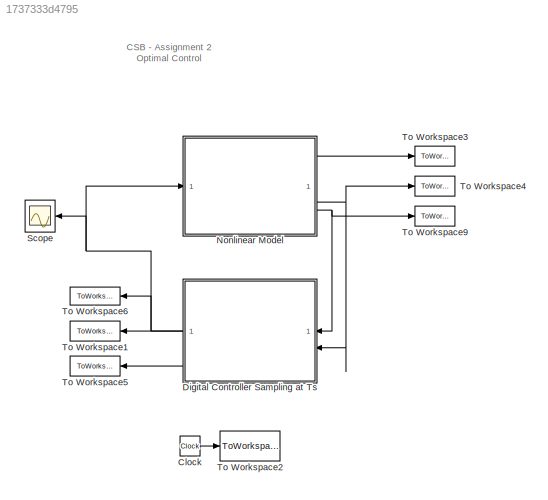
MODEL slx_1737333d4795
KIND model
CONFIG AbsTol = auto
CONFIG EnableMultiTasking = off
CONFIG FixedStep = auto
CONFIG MaxStep = auto
CONFIG MinStep = auto
CONFIG RelTol = 1e-3
CONFIG SampleTimeConstraint = Unconstrained
CONFIG SolverName = ode45
CONFIG StartFcn = sim_inv_pend
CONFIG StartTime = 0.0
CONFIG StopTime = Tf
BLOCK [Clock] Clock
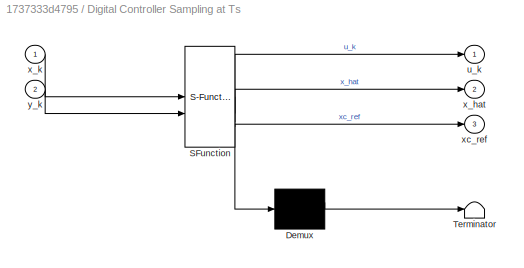
BLOCK [SubSystem] Digital Controller Sampling at Ts
  ErrorFcn = Stateflow.Translate.translate
  PermitHierarchicalResolution = ExplicitOnly
  SFBlockType = MATLAB Function
  SystemSampleTime = Ts
  TreatAsAtomicUnit = on
BLOCK [Demux] Digital Controller Sampling at Ts/ Demux 
  Outputs = 1
BLOCK [S-Function] Digital Controller Sampling at Ts/ SFunction 
  EnableBusSupport = on
  FunctionName = sf_sfun
  Parameters = A,AN,B,C,CL,F,K,Kf,Lambda,N,Umax,Umin,W,Xmax,Xmin,controller,obs,saturate,xo_hat
  PortCounts = [2 4]
  SFcnIsStateOwnerBlock = off
  SFunctionDeploymentMode = off
  Tag = Stateflow S-Function 2
BLOCK [Terminator] Digital Controller Sampling at Ts/ Terminator 
BLOCK [Outport] Digital Controller Sampling at Ts/u_k
BLOCK [Outport] Digital Controller Sampling at Ts/x_hat
  Port = 2
BLOCK [Inport] Digital Controller Sampling at Ts/x_k
BLOCK [Outport] Digital Controller Sampling at Ts/xc_ref
  Port = 3
BLOCK [Inport] Digital Controller Sampling at Ts/y_k
  Port = 2
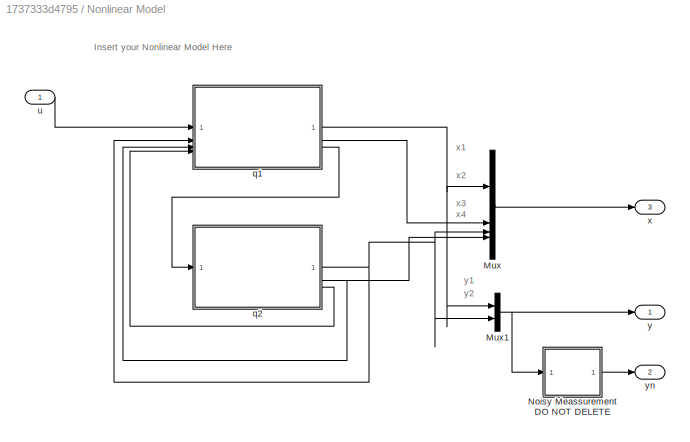
BLOCK [SubSystem] Nonlinear Model
BLOCK [Mux] Nonlinear Model/Mux
  DisplayOption = bar
BLOCK [Mux] Nonlinear Model/Mux1
  DisplayOption = bar
  Inputs = 2
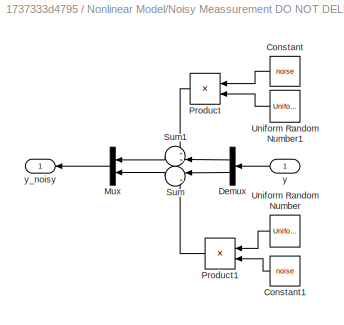
BLOCK [SubSystem] Nonlinear Model/Noisy Meassurement DO NOT DELETE
BLOCK [Constant] Nonlinear Model/Noisy Meassurement DO NOT DELETE/Constant
  NameLocation = top
  Value = noise
BLOCK [Constant] Nonlinear Model/Noisy Meassurement DO NOT DELETE/Constant1
  NameLocation = top
  Value = noise
BLOCK [Demux] Nonlinear Model/Noisy Meassurement DO NOT DELETE/Demux
  NameLocation = top
  Outputs = 2
BLOCK [Mux] Nonlinear Model/Noisy Meassurement DO NOT DELETE/Mux
  DisplayOption = bar
  Inputs = 2
  NameLocation = top
BLOCK [Product] Nonlinear Model/Noisy Meassurement DO NOT DELETE/Product
  NameLocation = top
BLOCK [Product] Nonlinear Model/Noisy Meassurement DO NOT DELETE/Product1
  NameLocation = top
BLOCK [Sum] Nonlinear Model/Noisy Meassurement DO NOT DELETE/Sum
  Inputs = |++
  NameLocation = top
BLOCK [Sum] Nonlinear Model/Noisy Meassurement DO NOT DELETE/Sum1
  Inputs = ++|
  NameLocation = top
BLOCK [UniformRandomNumber] Nonlinear Model/Noisy Meassurement DO NOT DELETE/Uniform Random Number
  Maximum = 0.002
  Minimum = -0.002
  NameLocation = top
  SampleTime = 0.5*Ts
BLOCK [UniformRandomNumber] Nonlinear Model/Noisy Meassurement DO NOT DELETE/Uniform Random Number1
  Maximum = 0.3
  Minimum = -0.3
  NameLocation = top
  SampleTime = 0.5*Ts
BLOCK [Inport] Nonlinear Model/Noisy Meassurement DO NOT DELETE/y
  NameLocation = top
BLOCK [Outport] Nonlinear Model/Noisy Meassurement DO NOT DELETE/y_noisy
  VectorParamsAs1DForOutWhenUnconnected = off
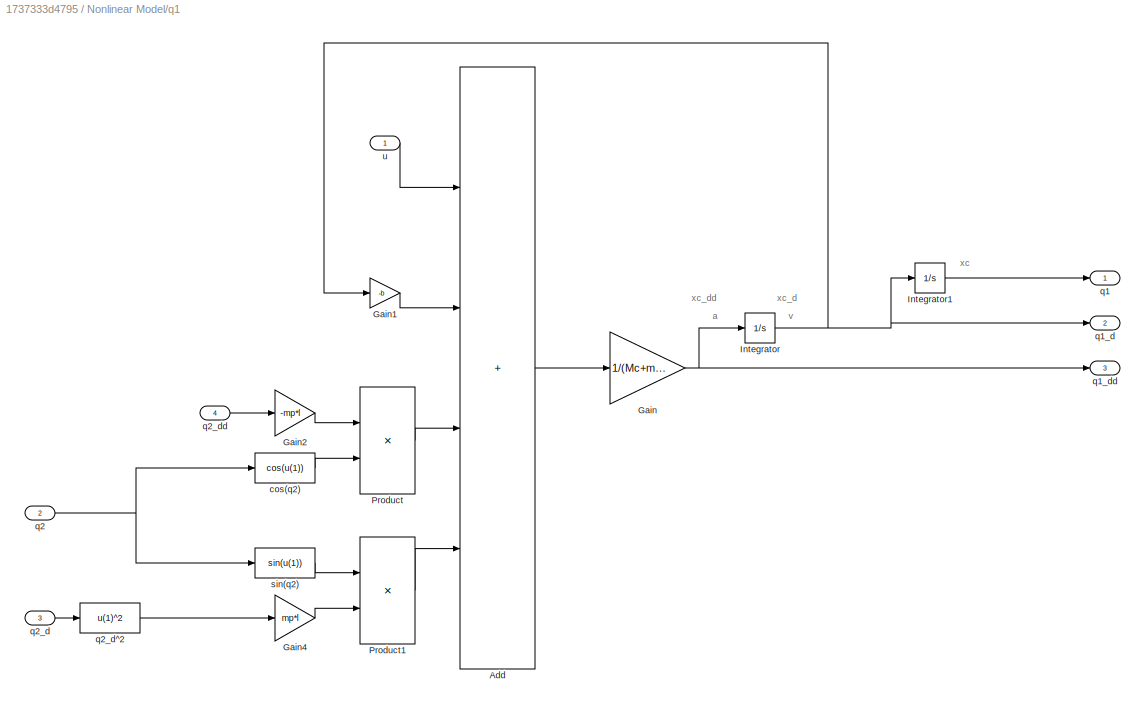
BLOCK [SubSystem] Nonlinear Model/q1
BLOCK [Sum] Nonlinear Model/q1/Add
  IconShape = rectangular
  Inputs = ++++
BLOCK [Gain] Nonlinear Model/q1/Gain
  Gain = 1/(Mc+mp)
BLOCK [Gain] Nonlinear Model/q1/Gain1
  Gain = -b
BLOCK [Gain] Nonlinear Model/q1/Gain2
  Gain = -mp*l
BLOCK [Gain] Nonlinear Model/q1/Gain4
  Gain = mp*l
BLOCK [Integrator] Nonlinear Model/q1/Integrator
  InitialCondition = xsp_o
BLOCK [Integrator] Nonlinear Model/q1/Integrator1
  InitialCondition = x_o
BLOCK [Product] Nonlinear Model/q1/Product
BLOCK [Product] Nonlinear Model/q1/Product1
BLOCK [Fcn] Nonlinear Model/q1/cos(q2)
  Expr = cos(u(1))
BLOCK [Outport] Nonlinear Model/q1/q1
  VectorParamsAs1DForOutWhenUnconnected = off
BLOCK [Outport] Nonlinear Model/q1/q1_d
  Port = 2
  VectorParamsAs1DForOutWhenUnconnected = off
BLOCK [Outport] Nonlinear Model/q1/q1_dd
  Port = 3
  VectorParamsAs1DForOutWhenUnconnected = off
BLOCK [Inport] Nonlinear Model/q1/q2
  Port = 2
BLOCK [Inport] Nonlinear Model/q1/q2_d
  Port = 3
BLOCK [Fcn] Nonlinear Model/q1/q2_d^2
  Expr = u(1)^2
BLOCK [Inport] Nonlinear Model/q1/q2_dd
  Port = 4
BLOCK [Fcn] Nonlinear Model/q1/sin(q2)
  Expr = sin(u(1))
BLOCK [Inport] Nonlinear Model/q1/u
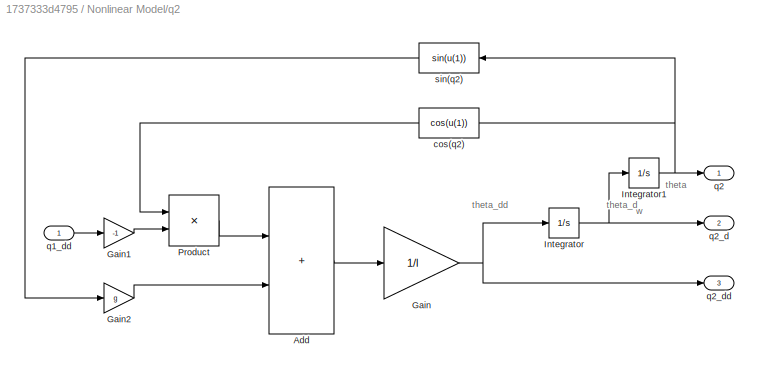
BLOCK [SubSystem] Nonlinear Model/q2
BLOCK [Sum] Nonlinear Model/q2/Add
  IconShape = rectangular
BLOCK [Gain] Nonlinear Model/q2/Gain
  Gain = 1/l
BLOCK [Gain] Nonlinear Model/q2/Gain1
  Gain = -1
BLOCK [Gain] Nonlinear Model/q2/Gain2
  Gain = g
BLOCK [Integrator] Nonlinear Model/q2/Integrator
  InitialCondition = w_o
BLOCK [Integrator] Nonlinear Model/q2/Integrator1
  InitialCondition = th_o
BLOCK [Product] Nonlinear Model/q2/Product
BLOCK [Fcn] Nonlinear Model/q2/cos(q2)
  Expr = cos(u(1))
  NameLocation = top
BLOCK [Inport] Nonlinear Model/q2/q1_dd
BLOCK [Outport] Nonlinear Model/q2/q2
  VectorParamsAs1DForOutWhenUnconnected = off
BLOCK [Outport] Nonlinear Model/q2/q2_d
  Port = 2
  VectorParamsAs1DForOutWhenUnconnected = off
BLOCK [Outport] Nonlinear Model/q2/q2_dd
  Port = 3
  VectorParamsAs1DForOutWhenUnconnected = off
BLOCK [Fcn] Nonlinear Model/q2/sin(q2)
  Expr = sin(u(1))
  NameLocation = top
BLOCK [Inport] Nonlinear Model/u
BLOCK [Outport] Nonlinear Model/x
  Port = 3
  VectorParamsAs1DForOutWhenUnconnected = off
BLOCK [Outport] Nonlinear Model/y
  VectorParamsAs1DForOutWhenUnconnected = off
BLOCK [Outport] Nonlinear Model/yn
  Port = 2
  VectorParamsAs1DForOutWhenUnconnected = off
BLOCK [Scope] Scope
  Floating = off
  NumInputPorts = 1
  ScopeSpecificationString = Simulink.scopes.TimeScopeBlockCfg('CurrentConfiguration', extmgr.ConfigurationSet(extmgr.Configuration('Core','General UI',true),extmgr.Configuration('Core','Source UI',true),extmgr.Configuration('Sources','WiredSimulink',true),extmgr.Configuration('Visuals','Time Domain',true),extmgr.Configuration('Tools','Plot Navigation',true),extmgr.Configuration('Tools','Measurements',true)),'Version','2022b'...<+1ch>
BLOCK [ToWorkspace] To Workspace1
  FixptAsFi = on
  MaxDataPoints = inf
  NameLocation = top
  SampleTime = Ts/100
  VariableName = x_hat
BLOCK [ToWorkspace] To Workspace2
  FixptAsFi = on
  MaxDataPoints = inf
  SampleTime = Ts/100
  VariableName = time
BLOCK [ToWorkspace] To Workspace3
  FixptAsFi = on
  MaxDataPoints = inf
  SampleTime = Ts/100
  VariableName = y
BLOCK [ToWorkspace] To Workspace4
  FixptAsFi = on
  MaxDataPoints = inf
  SampleTime = Ts/100
  VariableName = y_n
BLOCK [ToWorkspace] To Workspace5
  FixptAsFi = on
  MaxDataPoints = inf
  NameLocation = top
  SampleTime = Ts/100
  VariableName = x_ref
BLOCK [ToWorkspace] To Workspace6
  FixptAsFi = on
  MaxDataPoints = inf
  NameLocation = top
  SampleTime = Ts/100
  VariableName = u
BLOCK [ToWorkspace] To Workspace9
  FixptAsFi = on
  MaxDataPoints = inf
  SampleTime = Ts/100
  VariableName = x
ANNOTATION (root): CSB - Assignment 2 Optimal Control
ANNOTATION Nonlinear Model: Insert your Nonlinear Model Here
ANNOTATION Nonlinear Model: x1
ANNOTATION Nonlinear Model: x2
ANNOTATION Nonlinear Model: x3
ANNOTATION Nonlinear Model: x4
ANNOTATION Nonlinear Model: y1
ANNOTATION Nonlinear Model: y2
ANNOTATION Nonlinear Model/q1: a
ANNOTATION Nonlinear Model/q1: v
ANNOTATION Nonlinear Model/q1: xc
ANNOTATION Nonlinear Model/q1: xc_d
ANNOTATION Nonlinear Model/q1: xc_dd
ANNOTATION Nonlinear Model/q2: theta
ANNOTATION Nonlinear Model/q2: theta_d
ANNOTATION Nonlinear Model/q2: theta_dd
ANNOTATION Nonlinear Model/q2: w
LINE Clock:1 -> To Workspace2:1
NET Digital Controller Sampling at Ts:1 -> Nonlinear Model:1, Scope:1, To Workspace6:1
LINE Digital Controller Sampling at Ts:2 -> To Workspace1:1
LINE Digital Controller Sampling at Ts:3 -> To Workspace5:1
NET Nonlinear Model/Mux1:1 -> Nonlinear Model/Noisy Meassurement DO NOT DELETE:1, Nonlinear Model/y:1
LINE Nonlinear Model/Mux:1 -> Nonlinear Model/x:1
LINE Nonlinear Model/Noisy Meassurement DO NOT DELETE/Constant1:1 -> Nonlinear Model/Noisy Meassurement DO NOT DELETE/Product1:2
LINE Nonlinear Model/Noisy Meassurement DO NOT DELETE/Constant:1 -> Nonlinear Model/Noisy Meassurement DO NOT DELETE/Product:1
LINE Nonlinear Model/Noisy Meassurement DO NOT DELETE/Demux:1 -> Nonlinear Model/Noisy Meassurement DO NOT DELETE/Sum1:2
LINE Nonlinear Model/Noisy Meassurement DO NOT DELETE/Demux:2 -> Nonlinear Model/Noisy Meassurement DO NOT DELETE/Sum:1
LINE Nonlinear Model/Noisy Meassurement DO NOT DELETE/Mux:1 -> Nonlinear Model/Noisy Meassurement DO NOT DELETE/y_noisy:1
LINE Nonlinear Model/Noisy Meassurement DO NOT DELETE/Product1:1 -> Nonlinear Model/Noisy Meassurement DO NOT DELETE/Sum:2
LINE Nonlinear Model/Noisy Meassurement DO NOT DELETE/Product:1 -> Nonlinear Model/Noisy Meassurement DO NOT DELETE/Sum1:1
LINE Nonlinear Model/Noisy Meassurement DO NOT DELETE/Sum1:1 -> Nonlinear Model/Noisy Meassurement DO NOT DELETE/Mux:1
LINE Nonlinear Model/Noisy Meassurement DO NOT DELETE/Sum:1 -> Nonlinear Model/Noisy Meassurement DO NOT DELETE/Mux:2
LINE Nonlinear Model/Noisy Meassurement DO NOT DELETE/Uniform Random Number1:1 -> Nonlinear Model/Noisy Meassurement DO NOT DELETE/Product:2
LINE Nonlinear Model/Noisy Meassurement DO NOT DELETE/Uniform Random Number:1 -> Nonlinear Model/Noisy Meassurement DO NOT DELETE/Product1:1
LINE Nonlinear Model/Noisy Meassurement DO NOT DELETE/y:1 -> Nonlinear Model/Noisy Meassurement DO NOT DELETE/Demux:1
LINE Nonlinear Model/Noisy Meassurement DO NOT DELETE:1 -> Nonlinear Model/yn:1
LINE Nonlinear Model/q1/Add:1 -> Nonlinear Model/q1/Gain:1
LINE Nonlinear Model/q1/Gain1:1 -> Nonlinear Model/q1/Add:2
LINE Nonlinear Model/q1/Gain2:1 -> Nonlinear Model/q1/Product:1
LINE Nonlinear Model/q1/Gain4:1 -> Nonlinear Model/q1/Product1:2
NET Nonlinear Model/q1/Gain:1 -> Nonlinear Model/q1/Integrator:1, Nonlinear Model/q1/q1_dd:1
LINE Nonlinear Model/q1/Integrator1:1 -> Nonlinear Model/q1/q1:1
NET Nonlinear Model/q1/Integrator:1 -> Nonlinear Model/q1/Gain1:1, Nonlinear Model/q1/Integrator1:1, Nonlinear Model/q1/q1_d:1
LINE Nonlinear Model/q1/Product1:1 -> Nonlinear Model/q1/Add:4
LINE Nonlinear Model/q1/Product:1 -> Nonlinear Model/q1/Add:3
LINE Nonlinear Model/q1/cos(q2):1 -> Nonlinear Model/q1/Product:2
NET Nonlinear Model/q1/q2:1 -> Nonlinear Model/q1/cos(q2):1, Nonlinear Model/q1/sin(q2):1
LINE Nonlinear Model/q1/q2_d:1 -> Nonlinear Model/q1/q2_d^2:1
LINE Nonlinear Model/q1/q2_d^2:1 -> Nonlinear Model/q1/Gain4:1
LINE Nonlinear Model/q1/q2_dd:1 -> Nonlinear Model/q1/Gain2:1
LINE Nonlinear Model/q1/sin(q2):1 -> Nonlinear Model/q1/Product1:1
LINE Nonlinear Model/q1/u:1 -> Nonlinear Model/q1/Add:1
NET Nonlinear Model/q1:1 -> Nonlinear Model/Mux1:1, Nonlinear Model/Mux:1
LINE Nonlinear Model/q1:2 -> Nonlinear Model/Mux:2
LINE Nonlinear Model/q1:3 -> Nonlinear Model/q2:1
LINE Nonlinear Model/q2/Add:1 -> Nonlinear Model/q2/Gain:1
LINE Nonlinear Model/q2/Gain1:1 -> Nonlinear Model/q2/Product:2
LINE Nonlinear Model/q2/Gain2:1 -> Nonlinear Model/q2/Add:2
NET Nonlinear Model/q2/Gain:1 -> Nonlinear Model/q2/Integrator:1, Nonlinear Model/q2/q2_dd:1
NET Nonlinear Model/q2/Integrator1:1 -> Nonlinear Model/q2/cos(q2):1, Nonlinear Model/q2/q2:1, Nonlinear Model/q2/sin(q2):1
NET Nonlinear Model/q2/Integrator:1 -> Nonlinear Model/q2/Integrator1:1, Nonlinear Model/q2/q2_d:1
LINE Nonlinear Model/q2/Product:1 -> Nonlinear Model/q2/Add:1
LINE Nonlinear Model/q2/cos(q2):1 -> Nonlinear Model/q2/Product:1
LINE Nonlinear Model/q2/q1_dd:1 -> Nonlinear Model/q2/Gain1:1
LINE Nonlinear Model/q2/sin(q2):1 -> Nonlinear Model/q2/Gain2:1
NET Nonlinear Model/q2:1 -> Nonlinear Model/Mux1:2, Nonlinear Model/Mux:3, Nonlinear Model/q1:2
NET Nonlinear Model/q2:2 -> Nonlinear Model/Mux:4, Nonlinear Model/q1:3
LINE Nonlinear Model/q2:3 -> Nonlinear Model/q1:4
LINE Nonlinear Model/u:1 -> Nonlinear Model/q1:1
LINE Nonlinear Model:1 -> To Workspace3:1
NET Nonlinear Model:2 -> Digital Controller Sampling at Ts:2, To Workspace4:1
NET Nonlinear Model:3 -> Digital Controller Sampling at Ts:1, To Workspace9:1
note: NET lines group one-source signal fan-out (src -> all destinations, sorted); 1:1 wires keep LINE
CHART Digital Controller
Sampling at Ts states=1 transitions=1
  STATE_LABEL 'eML_blk_kernel()'
  STATE_LABEL 'SCRIPT:\nfunction [u_k,x_hat, xc_ref]= OPT_CTRL(x_k,y_k,xo_hat,obs, CL, controller, Kf, K, A, B, C, W, F, N, Lambda, Umin, Umax, Xmax, Xmin, AN, saturate)\n%% Instructions CSB A2\n%\n% 1) This block will run every Ts\n%\n% 2) It is possible to read variables from workspase.\n%    For example, to read matrix A, add it to fcn(x_k,A).\n%    Then go to Edit Data (next to Build MOdel)and chage \n%    its "Scope...<+3518ch>'
CHART  states=0 transitions=0
